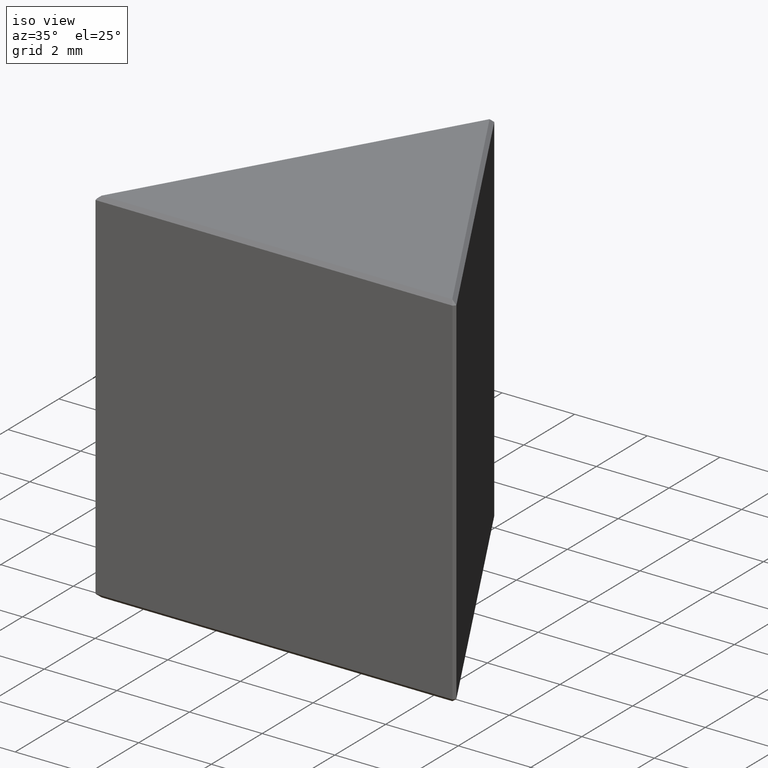
[diagram: clean part render]
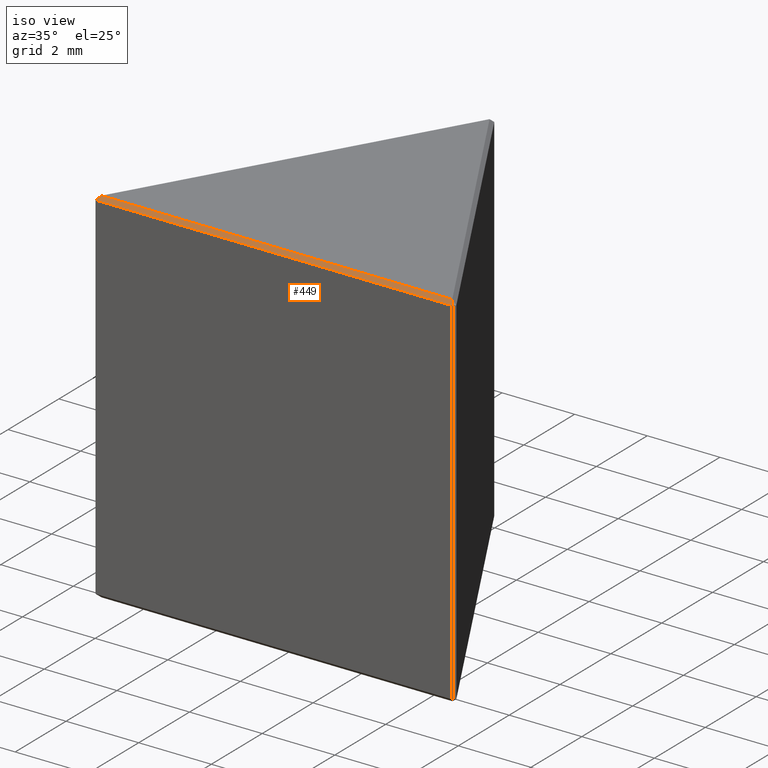
[diagram: same view with one face highlighted and labeled with its STEP entity id]
A machine part, iso view. The second image highlights one B-rep face of the part: STEP entity #449.
In plain terms, the highlighted planar face has unit normal (0, -0.7071, 0.7071).
Its self-contained STEP definition (entity closure, byte-faithful):
#20 = FACE_OUTER_BOUND ( 'NONE', #217, .T. ) ;
#96 = LINE ( 'NONE', #99, #122 ) ;
#97 = ORIENTED_EDGE ( 'NONE', *, *, #267, .F. ) ;
#99 = CARTESIAN_POINT ( 'NONE',  ( -5.000000000000000000, -8.660254037844387298, 9.899999999999998579 ) ) ;
#106 = DIRECTION ( 'NONE',  ( 0.000000000000000000, -0.7071067811865536790, 0.7071067811865414665 ) ) ;
#122 = VECTOR ( 'NONE', #411, 1000.000000000000000 ) ;
#124 = CARTESIAN_POINT ( 'NONE',  ( 4.899999999999998579, -8.660254037844387298, 9.899999999999998579 ) ) ;
#128 = EDGE_CURVE ( 'NONE', #353, #177, #169, .T. ) ;
#143 = CARTESIAN_POINT ( 'NONE',  ( 0.000000000000000000, -8.560254037844387653, 10.00000000000000000 ) ) ;
#169 = LINE ( 'NONE', #124, #211 ) ;
#176 = CARTESIAN_POINT ( 'NONE',  ( -4.905662432702594167, -8.639121551303865942, 9.921132486540518158 ) ) ;
#177 = VERTEX_POINT ( 'NONE', #261 ) ;
#185 = ORIENTED_EDGE ( 'NONE', *, *, #128, .F. ) ;
#193 = VECTOR ( 'NONE', #368, 1000.000000000000000 ) ;
#197 = DIRECTION ( 'NONE',  ( 0.4597008433809659511, -0.6279630301995552388, -0.6279630301995660080 ) ) ;
#198 = EDGE_CURVE ( 'NONE', #414, #353, #437, .T. ) ;
#208 = CARTESIAN_POINT ( 'NONE',  ( 4.826794919243114101, -8.560254037844387653, 10.00000000000000000 ) ) ;
#211 = VECTOR ( 'NONE', #197, 999.9999999999998863 ) ;
#217 = EDGE_LOOP ( 'NONE', ( #97, #421, #185, #232 ) ) ;
#232 = ORIENTED_EDGE ( 'NONE', *, *, #198, .F. ) ;
#261 = CARTESIAN_POINT ( 'NONE',  ( 4.899999999999998579, -8.660254037844387298, 9.899999999999998579 ) ) ;
#267 = EDGE_CURVE ( 'NONE', #442, #414, #367, .T. ) ;
#279 = EDGE_CURVE ( 'NONE', #177, #442, #96, .T. ) ;
#290 = CARTESIAN_POINT ( 'NONE',  ( -4.826794919243114101, -8.560254037844387653, 10.00000000000000000 ) ) ;
#300 = PLANE ( 'NONE',  #384 ) ;
#352 = VECTOR ( 'NONE', #481, 1000.000000000000114 ) ;
#353 = VERTEX_POINT ( 'NONE', #208 ) ;
#367 = LINE ( 'NONE', #176, #352 ) ;
#368 = DIRECTION ( 'NONE',  ( 1.000000000000000000, 0.000000000000000000, 0.000000000000000000 ) ) ;
#372 = CARTESIAN_POINT ( 'NONE',  ( -4.926794919243112858, -8.660254037844387298, 9.899999999999998579 ) ) ;
#379 = DIRECTION ( 'NONE',  ( -1.000000000000000000, 0.000000000000000000, 0.000000000000000000 ) ) ;
#384 = AXIS2_PLACEMENT_3D ( 'NONE', #143, #106, #379 ) ;
#411 = DIRECTION ( 'NONE',  ( -1.000000000000000000, 0.000000000000000000, 0.000000000000000000 ) ) ;
#414 = VERTEX_POINT ( 'NONE', #290 ) ;
#421 = ORIENTED_EDGE ( 'NONE', *, *, #279, .F. ) ;
#437 = LINE ( 'NONE', #476, #193 ) ;
#442 = VERTEX_POINT ( 'NONE', #372 ) ;
#449 = ADVANCED_FACE ( 'NONE', ( #20 ), #300, .T. ) ;
#476 = CARTESIAN_POINT ( 'NONE',  ( 5.000000000000000000, -8.560254037844387653, 10.00000000000000000 ) ) ;
#481 = DIRECTION ( 'NONE',  ( 0.5773502691896190697, 0.5773502691896241767, 0.5773502691896341688 ) ) ;